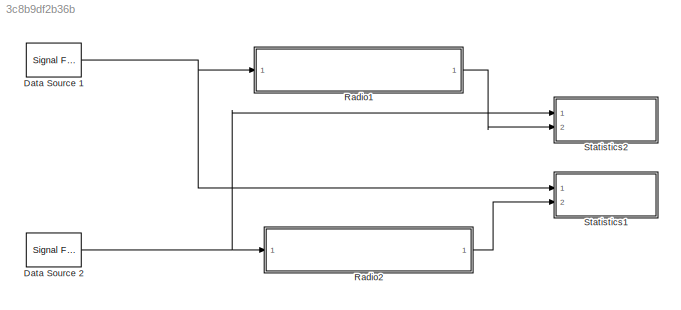
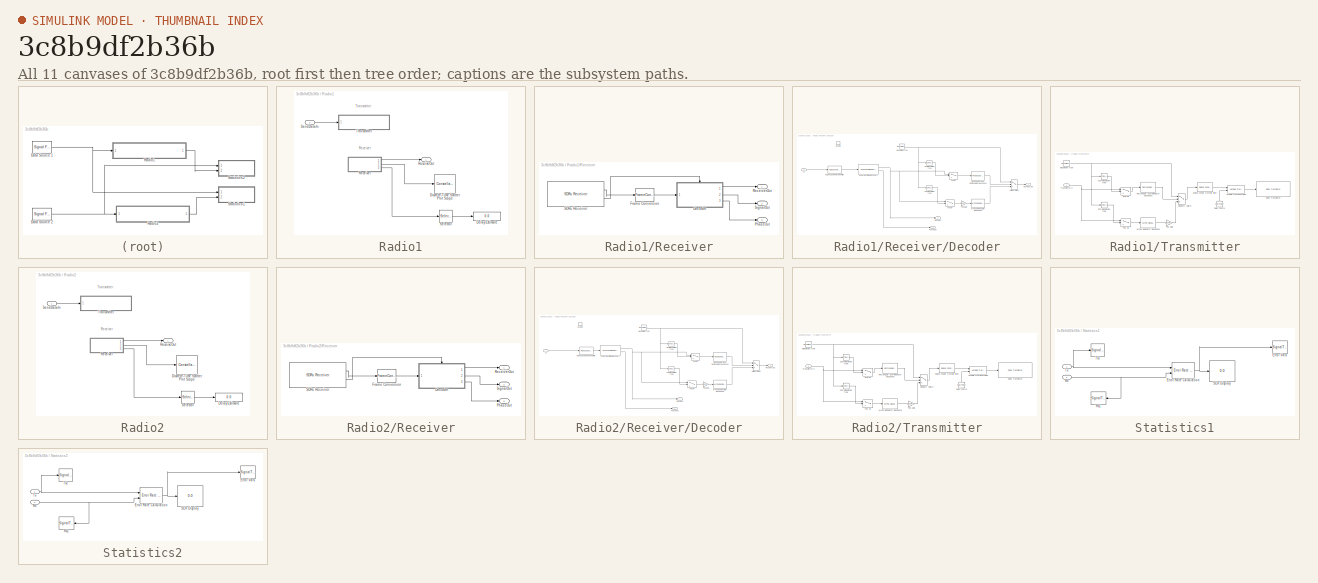
[diagram: thumbnail index - all 11 canvases of the model, root first then tree order]
MODEL slx_3c8b9df2b36b
KIND model
WORKSPACE source: MAT-file member
WORKSPACE MCOS: class17 (value not decoded)
WORKSPACE MCOS: class17 (value not decoded)
BLOCK [Reference] Data Source 1  REF=dspsrcs4/Signal From
Workspace
  OutputAfterFinalValue = Cyclic repetition
  Ports = [0, 1]
  SourceBlock = dspsrcs4/Signal From\nWorkspace
  SourceType = Signal From Workspace
  Ts = SampleTime
  X = data1
  ignoreOrWarnInputAndFrameLengths = on
  nsamps = SamplesPerFrame
BLOCK [Reference] Data Source 2  REF=dspsrcs4/Signal From
Workspace
  OutputAfterFinalValue = Cyclic repetition
  Ports = [0, 1]
  SourceBlock = dspsrcs4/Signal From\nWorkspace
  SourceType = Signal From Workspace
  Ts = SampleTime
  X = data2
  ignoreOrWarnInputAndFrameLengths = on
  nsamps = SamplesPerFrame
BLOCK [SubSystem] Radio1
  FunctionWithSeparateData = off
  MaskHideContents = off
  MinAlgLoopOccurrences = off
  Opaque = off
  Ports = [1, 1]
  PropExecContextOutsideSubsystem = off
  RTWSystemCode = Auto
  RequestExecContextInheritance = off
BLOCK [Display] Radio1/Delay Estimate
  Decimation = 1
  Ports = [1]
BLOCK [ConstellationDiagram] Radio1/Discrete-Time Scatter Plot Scope
  CloseFcn = scopeextensions.ScopeBlock.callback(gcbh, 'onBlockClose');
  CopyFcn = scopeextensions.ScopeBlock.onCoreBlockCopy(gcbh);
  DeleteFcn = scopeextensions.ScopeBlock.callback(gcbh, 'onBlockDelete');
  DestroyFcn = scopeextensions.ScopeBlock.onBlockDestroy(gcbh)
  Diagnostics = AllowInheritedTsInSrc
  NameChangeFcn = scopeextensions.ScopeBlock.callback(gcbh, 'onBlockRename');
  Ports = [1]
  PreDeleteFcn = scopeextensions.ScopeBlock.callback(gcbh, 'onBlockPreDelete');
  PreSaveFcn = scopeextensions.ScopeBlock.callback(gcbh, 'onModelSave');
  Tag = ScatterPlot
BLOCK [Outport] Radio1/ReceiveOut
  IconDisplay = Port number
BLOCK [SubSystem] Radio1/Receiver
  FunctionWithSeparateData = off
  MaskHideContents = off
  MinAlgLoopOccurrences = off
  Opaque = off
  Ports = [0, 3]
  PropExecContextOutsideSubsystem = off
  RTWFcnNameOpts = Use subsystem name
  RTWFileNameOpts = Use function name
  RTWSystemCode = Reusable function
  RequestExecContextInheritance = off
  TreatAsAtomicUnit = on
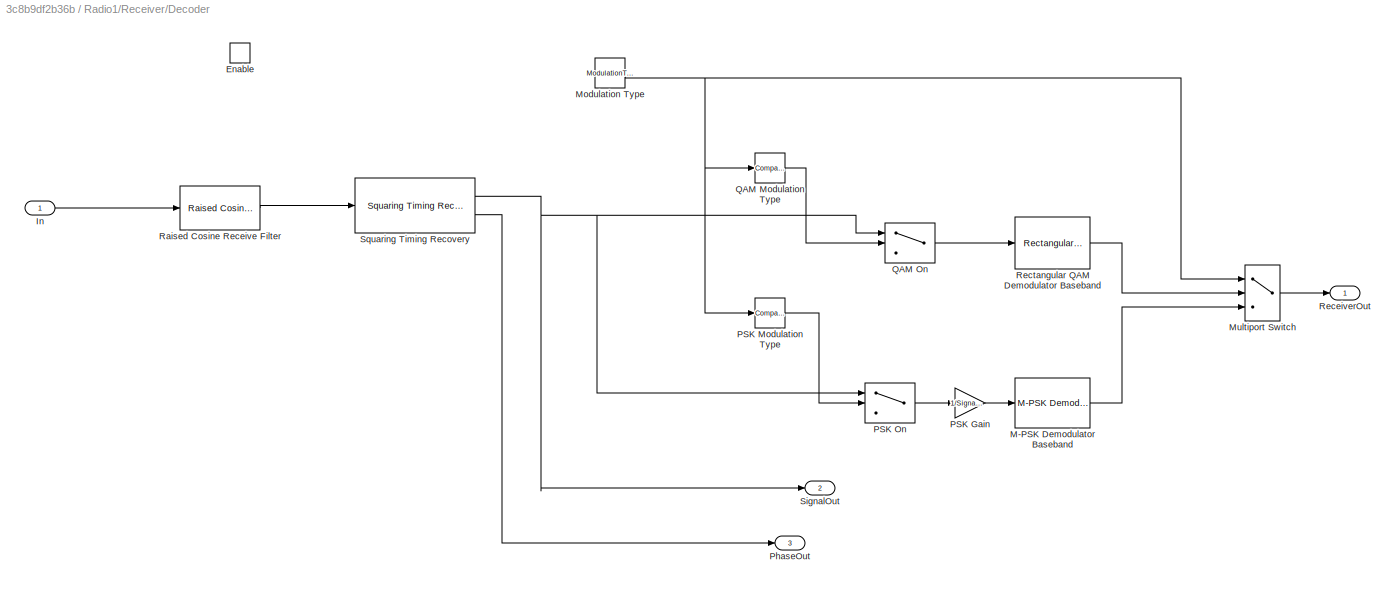
BLOCK [SubSystem] Radio1/Receiver/Decoder
  FunctionWithSeparateData = off
  MaskHideContents = off
  MinAlgLoopOccurrences = off
  Opaque = off
  Ports = [1, 3, 1]
  PropExecContextOutsideSubsystem = off
  RTWSystemCode = Auto
  RequestExecContextInheritance = off
  TreatAsAtomicUnit = on
BLOCK [EnablePort] Radio1/Receiver/Decoder/Enable
  Ports = []
BLOCK [Inport] Radio1/Receiver/Decoder/In
  IconDisplay = Port number
BLOCK [Reference] Radio1/Receiver/Decoder/M-PSK Demodulator Baseband  REF=commdigbbndpm3/M-PSK
Demodulator
Baseband
  Dec = Gray
  DecType = Hard decision
  M = M_ary
  Mapping = [0:7]
  OutType = Integer
  Ph = pi/M_ary
  Ports = [1, 1]
  SourceBlock = commdigbbndpm3/M-PSK\nDemodulator\nBaseband
  SourceType = M-PSK Demodulator Baseband
  VarSource = Dialog
  Variance = 1
  derotateFactorDTMode = Same word length as input
  derotateFactorWordLen = 16
  outDtype1 = Inherit via internal rule
  outDtype2 = uint8
BLOCK [Constant] Radio1/Receiver/Decoder/Modulation Type
  Value = ModulationType
BLOCK [MultiPortSwitch] Radio1/Receiver/Decoder/Multiport Switch
  DataPortOrder = Zero-based contiguous
  InputSameDT = off
  Inputs = 2
  Ports = [3, 1]
  SaturateOnIntegerOverflow = off
BLOCK [Gain] Radio1/Receiver/Decoder/PSK Gain
  Gain = 1/SignalPower
  OutDataTypeStr = Inherit: Inherit via internal rule
  ParamDataTypeStr = Inherit: Inherit via internal rule
  SaturateOnIntegerOverflow = off
BLOCK [Reference] Radio1/Receiver/Decoder/PSK Modulation Type  REF=simulink/Logic and Bit
Operations/Compare
To Constant
  OutDataTypeStr = uint8
  Ports = [1, 1]
  SourceBlock = simulink/Logic and Bit\nOperations/Compare\nTo Constant
  SourceType = Compare To Constant
  ZeroCross = on
  const = 1
  relop = ==
BLOCK [Switch] Radio1/Receiver/Decoder/PSK On
  Criteria = u2 > Threshold
  InputSameDT = off
  SaturateOnIntegerOverflow = off
BLOCK [Outport] Radio1/Receiver/Decoder/PhaseOut
  IconDisplay = Port number
  Port = 3
BLOCK [Reference] Radio1/Receiver/Decoder/QAM Modulation Type  REF=simulink/Logic and Bit
Operations/Compare
To Constant
  OutDataTypeStr = uint8
  Ports = [1, 1]
  SourceBlock = simulink/Logic and Bit\nOperations/Compare\nTo Constant
  SourceType = Compare To Constant
  ZeroCross = on
  const = 0
  relop = ==
BLOCK [Switch] Radio1/Receiver/Decoder/QAM On
  Criteria = u2 > Threshold
  InputSameDT = off
  SaturateOnIntegerOverflow = off
BLOCK [Reference] Radio1/Receiver/Decoder/Raised Cosine Receive Filter  REF=commfilt2/Raised Cosine
Receive Filter
  D = 4
  InputProcessing = Columns as channels (frame based)
  LockScale = off
  N = 8
  Ports = [1, 1]
  R = 0.2
  SourceBlock = commfilt2/Raised Cosine\nReceive Filter
  SourceType = Raised Cosine Receive Filter
  UserDataPersistent = on
  accumFracLength = 30
  accumMode = Same as product output
  accumWordLength = 32
  checkCoeff = off
  checkGain = Normalized
  coeffFracLength = 15
  coeffMode = Same word length as input
  coeffWordLength = 16
  currentFiltSpan = 2*(4)
  downFactor = 1
  downOffset = 0
  filtSpan = 2*(4)
  filtType = Square root
  filterGain = rcfiltgaincompat(gcbh)
  framing = Maintain input frame rate
  launchFVT = off
  outputFracLength = 15
  outputMode = Same as accumulator
  outputWordLength = 16
  overflowMode = off
  prodOutputFracLength = 30
  prodOutputMode = Same as input
  prodOutputWordLength = 32
  rateMode = Downsampling
  roundingMode = Floor
  sampMode = Mute
  saveAsFlag = 0
  variableName = rcRxFilt
BLOCK [Outport] Radio1/Receiver/Decoder/ReceiverOut
  IconDisplay = Port number
BLOCK [Reference] Radio1/Receiver/Decoder/Rectangular QAM Demodulator Baseband  REF=commdigbbndam3/Rectangular QAM
Demodulator
Baseband
  AvgPow = 1
  Dec = Binary
  DecType = Hard decision
  M = M_ary
  Mapping = [0:15]
  MinDist = SignalPower
  OutType = Integer
  PeakPow = 1
  Ph = SymbolPhaseOffset
  Ports = [1, 1]
  PowType = Min. distance between symbols
  SourceBlock = commdigbbndam3/Rectangular QAM\nDemodulator\nBaseband
  SourceType = Rectangular QAM Demodulator Baseband
  VarSource = Dialog
  Variance = 1
  denormFactorDTMode = Same word length as input
  denormFactorWordLen = 16
  derotateFactorDTMode = Same word length as input
  derotateFactorWordLen = 16
  outDtype1 = double
  outDtype2 = uint8
  prodOutDTMode = Inherit via internal rule
  prodOutOverflowMode = Wrap
  prodOutRoundingMode = Floor
  prodOutWordLen = 32
  sumDTMode = Inherit via internal rule
  sumWordLen = 32
BLOCK [Outport] Radio1/Receiver/Decoder/SignalOut
  IconDisplay = Port number
  Port = 2
BLOCK [Reference] Radio1/Receiver/Decoder/Squaring Timing Recovery  REF=commtimrec2/Squaring
Timing Recovery
  Ports = [1, 2]
  SourceBlock = commtimrec2/Squaring\nTiming Recovery
  SourceType = Squaring Timing Recovery
  numSymb = SamplesPerFrame
  sampPerSymb = 8
BLOCK [FrameConversion] Radio1/Receiver/Frame Conversion
  Ports = [1, 1]
BLOCK [Outport] Radio1/Receiver/PhaseOut
  IconDisplay = Port number
  Port = 3
BLOCK [Outport] Radio1/Receiver/ReceiverOut
  IconDisplay = Port number
BLOCK [Reference] Radio1/Receiver/SDRu Receiver  REF=commsdrhw_v2/SDRu Receiver
  EnableBurstMode = off
  HOST_CONTROL_PORT = 0
  HOST_DATA_PORT = 0
  NumFramesInBurst = 100
  Ports = [0, 2]
  SourceBlock = commsdrhw_v2/SDRu Receiver
  SourceType = SDRu Receiver
  USRP2_CONTROL_PORT = 0
  USRP2_DATA_PORT = 0
  USRP2_IP = '192.168.10.2'
  USRP2_IP_NUM = [49 57 50 46 49 54 56 46 49 48 46 50]
  bufferMode = Continuous streaming
  centerFrequency = CarrierFrequency
  centerFrequencySrc = Dialog
  decimInterp = 1
  decimInterpSrc = Dialog
  frameLength = SamplesPerFrame*8
  gain = SignalPower
  gainSrc = Dialog
  loOffset = 0
  loOffsetSrc = Dialog
  outputDatatype = double
  overrunUnderrunPort = off
  rxtx = rx
  sampleTime = SampleTime/8
BLOCK [Outport] Radio1/Receiver/SignalOut
  IconDisplay = Port number
  Port = 2
BLOCK [Selector] Radio1/Selector
  IndexOptions = Index vector (dialog)
  Indices = 1
  InputPortWidth = SamplesPerFrame
  OutputSizes = 1
  Ports = [1, 1]
BLOCK [Inport] Radio1/SendDataIn
  IconDisplay = Port number
BLOCK [SubSystem] Radio1/Transmitter
  FunctionWithSeparateData = off
  MaskHideContents = off
  MinAlgLoopOccurrences = off
  Opaque = off
  Ports = [1]
  PropExecContextOutsideSubsystem = off
  RTWFcnNameOpts = Use subsystem name
  RTWFileNameOpts = Use function name
  RTWSystemCode = Reusable function
  RequestExecContextInheritance = off
  TreatAsAtomicUnit = on
BLOCK [Constant] Radio1/Transmitter/Delay Factor
  Value = DelayParam
BLOCK [Reference] Radio1/Transmitter/M-PSK Modulator Baseband  REF=commdigbbndpm3/M-PSK
Modulator
Baseband
  Enc = Gray
  InType = Integer
  M = M_ary
  Mapping = [0:7]
  Ph = pi/M_ary
  Ports = [1, 1]
  SourceBlock = commdigbbndpm3/M-PSK\nModulator\nBaseband
  SourceType = M-PSK Modulator Baseband
  outDtype = double
  outFracLen = 15
  outFracLenMode = Best precision
  outUDDataType = sfix(16)
  outWordLen = 16
BLOCK [Constant] Radio1/Transmitter/Modulation Type
  Value = ModulationType
BLOCK [MultiPortSwitch] Radio1/Transmitter/Multiport Switch
  DataPortOrder = Zero-based contiguous
  InputSameDT = off
  Inputs = 2
  Ports = [3, 1]
  SaturateOnIntegerOverflow = off
BLOCK [Gain] Radio1/Transmitter/PSK Gain
  Gain = SignalPower
  OutDataTypeStr = Inherit: Inherit via internal rule
  ParamDataTypeStr = Inherit: Inherit via internal rule
  SaturateOnIntegerOverflow = off
BLOCK [Reference] Radio1/Transmitter/PSK Modulation Type  REF=simulink/Logic and Bit
Operations/Compare
To Constant
  OutDataTypeStr = uint8
  Ports = [1, 1]
  SourceBlock = simulink/Logic and Bit\nOperations/Compare\nTo Constant
  SourceType = Compare To Constant
  ZeroCross = on
  const = 1
  relop = ==
BLOCK [Switch] Radio1/Transmitter/PSK On
  Criteria = u2 > Threshold
  InputSameDT = off
  SaturateOnIntegerOverflow = off
BLOCK [Reference] Radio1/Transmitter/QAM Modulation Type  REF=simulink/Logic and Bit
Operations/Compare
To Constant
  OutDataTypeStr = uint8
  Ports = [1, 1]
  SourceBlock = simulink/Logic and Bit\nOperations/Compare\nTo Constant
  SourceType = Compare To Constant
  ZeroCross = on
  const = 0
  relop = ==
BLOCK [Switch] Radio1/Transmitter/QAM On
  Criteria = u2 > Threshold
  InputSameDT = off
  SaturateOnIntegerOverflow = off
BLOCK [Reference] Radio1/Transmitter/Raised Cosine Transmit Filter  REF=commfilt2/Raised Cosine
Transmit Filter
  D = (2*(4))/2
  InputProcessing = Columns as channels (frame based)
  LockScale = off
  N = 8
  Ports = [1, 1]
  R = 0.2
  SourceBlock = commfilt2/Raised Cosine\nTransmit Filter
  SourceType = Raised Cosine Transmit Filter
  UserDataPersistent = on
  accumFracLength = 30
  accumMode = Inherit via internal rule
  accumWordLength = 32
  checkCoeff = off
  checkGain = Normalized
  coeffFracLength = 15
  coeffMode = Same word length as input
  coeffWordLength = 16
  currentFiltSpan = 2*(4)
  filtSpan = 2*(4)
  filtType = Square root
  filterGain = rcfiltgaincompat(gcbh)
  framing = Enforce single-rate processing
  launchFVT = off
  outputFracLength = 15
  outputMode = Same as accumulator
  outputWordLength = 16
  overflowMode = off
  prodOutputFracLength = 30
  prodOutputMode = Inherit via internal rule
  prodOutputWordLength = 32
  roundingMode = Floor
  sampMode = Mute
  saveAsFlag = 0
  variableName = rcTxFilt
BLOCK [Reference] Radio1/Transmitter/Rectangular QAM Modulator Baseband  REF=commdigbbndam3/Rectangular QAM
Modulator
Baseband
  AvgPow = 1
  Enc = Binary
  InType = Integer
  M = M_ary
  Mapping = [0:15]
  MinDist = SignalPower
  PeakPow = 1
  Ph = SymbolPhaseOffset
  Ports = [1, 1]
  PowType = Min. distance between symbols
  SourceBlock = commdigbbndam3/Rectangular QAM\nModulator\nBaseband
  SourceType = Rectangular QAM Modulator Baseband
  outDtype = double
  outFracLen = 15
  outFracLenMode = Best precision
  outUDDataType = sfix(16)
  outWordLen = 16
BLOCK [Reference] Radio1/Transmitter/SDRu Transmitter  REF=commsdrhw_v2/SDRu Transmitter
  EnableBurstMode = off
  HOST_CONTROL_PORT = 30001
  HOST_DATA_PORT = 30000
  NumFramesInBurst = 100
  Ports = [1]
  SourceBlock = commsdrhw_v2/SDRu Transmitter
  SourceType = SDRu Transmitter
  USRP2_CONTROL_PORT = 32768
  USRP2_DATA_PORT = 32769
  USRP2_IP = '192.168.10.2'
  USRP2_IP_NUM = [49 57 50 46 49 54 56 46 49 48 46 50]
  bufferMode = Continuous streaming
  centerFrequency = CarrierFrequency
  centerFrequencySrc = Dialog
  dboardInfo = dbid: 0\n          dbName: 'no db found'\n         freqMin: 0\n         freqMax: 0\n         gainMin: 0\n         gainMax: 0\n    gainStepSize: 0
  decimInterp = 1e8*SampleTime
  decimInterpSrc = Dialog
  frameLength = 362
  gain = SignalPower
  gainSrc = Dialog
  loOffset = 0
  loOffsetSrc = Dialog
  outputDatatype = int16
  overrunUnderrunPort = off
  rxtx = tx
  sampleTime = 1
BLOCK [Inport] Radio1/Transmitter/TransmitterIn
  IconDisplay = Port number
BLOCK [Reference] Radio1/Transmitter/Variable Fractional Delay  REF=dspsigops/Variable
Fractional Delay
  FarrowL = 4
  InputProcessing = Columns as channels (frame based)
  L = 4
  LockScale = off
  Ports = [2, 1]
  R = 10
  SourceBlock = dspsigops/Variable\nFractional Delay
  SourceType = Variable Fractional Delay
  UserDataPersistent = on
  accumFracLength = 10
  accumMode = Same as product output
  accumWordLength = 32
  alpha = 1
  dmax = 4
  fallbackFIR = Clip to the minimum value necessary for centered kernel
  fallbackFarrow = Clip to the minimum value necessary for centered kernel
  firstCoeffFracLength = 0
  firstCoeffMode = Same word length as input
  firstCoeffWordLength = 32
  ic = 0
  interProdFracLength = 10
  interProdMode = Same as first input
  interProdWordLength = 32
  memoryFracLength = 10
  memoryMode = Same as first input
  memoryWordLength = 32
  mode = OBSOLETE
  modeActive = Linear
  noDFT = off
  outputFracLength = 10
  outputMode = Same as accumulator
  outputWordLength = 32
  overflowMode = off
  prodOutputFracLength = 10
  prodOutputMode = Same as first input
  prodOutputWordLength = 32
  roundingMode = Zero
  secondCoeffFracLength = 10
  secondCoeffMode = Same as first input
  secondCoeffWordLength = 32
BLOCK [SubSystem] Radio2
  FunctionWithSeparateData = off
  MaskHideContents = off
  MinAlgLoopOccurrences = off
  Opaque = off
  Ports = [1, 1]
  PropExecContextOutsideSubsystem = off
  RTWSystemCode = Auto
  RequestExecContextInheritance = off
BLOCK [Display] Radio2/Delay Estimate
  Decimation = 1
  Ports = [1]
BLOCK [ConstellationDiagram] Radio2/Discrete-Time Scatter Plot Scope
  CloseFcn = scopeextensions.ScopeBlock.callback(gcbh, 'onBlockClose');
  CopyFcn = scopeextensions.ScopeBlock.onCoreBlockCopy(gcbh);
  DeleteFcn = scopeextensions.ScopeBlock.callback(gcbh, 'onBlockDelete');
  DestroyFcn = scopeextensions.ScopeBlock.onBlockDestroy(gcbh)
  Diagnostics = AllowInheritedTsInSrc
  NameChangeFcn = scopeextensions.ScopeBlock.callback(gcbh, 'onBlockRename');
  Ports = [1]
  PreDeleteFcn = scopeextensions.ScopeBlock.callback(gcbh, 'onBlockPreDelete');
  PreSaveFcn = scopeextensions.ScopeBlock.callback(gcbh, 'onModelSave');
  Tag = ScatterPlot
BLOCK [Outport] Radio2/ReceiveOut
  IconDisplay = Port number
BLOCK [SubSystem] Radio2/Receiver
  FunctionWithSeparateData = off
  MaskHideContents = off
  MinAlgLoopOccurrences = off
  Opaque = off
  Ports = [0, 3]
  PropExecContextOutsideSubsystem = off
  RTWFcnNameOpts = Use subsystem name
  RTWFileNameOpts = Use function name
  RTWSystemCode = Reusable function
  RequestExecContextInheritance = off
  TreatAsAtomicUnit = on
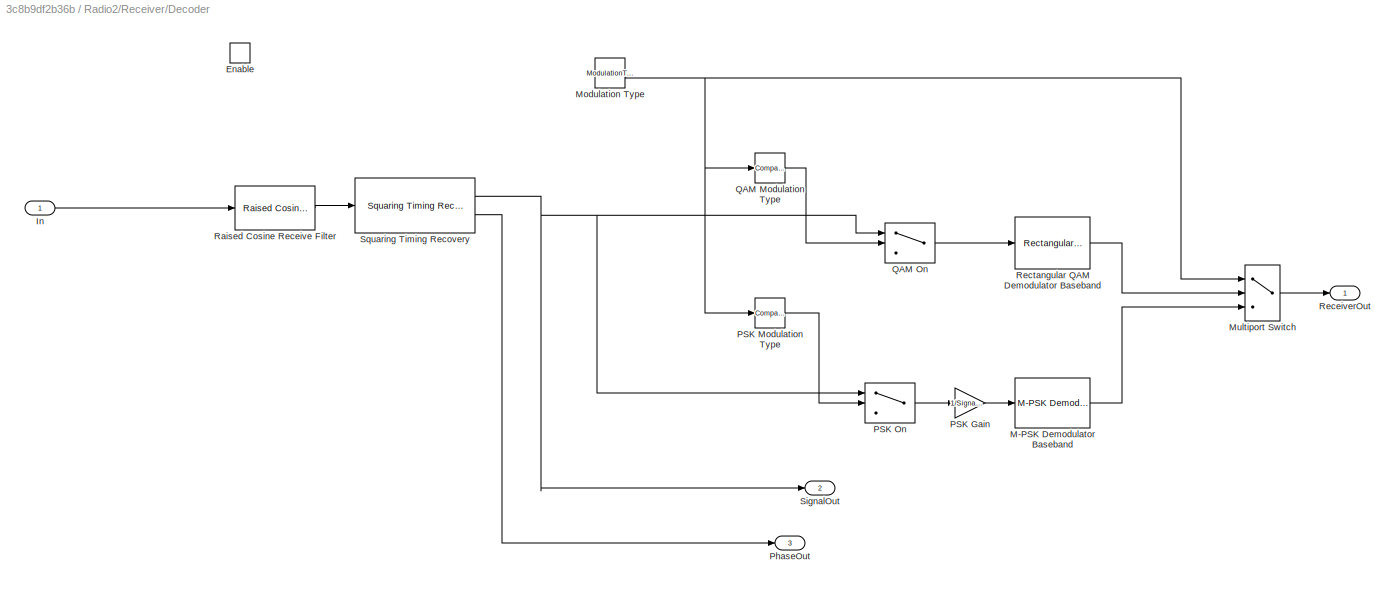
BLOCK [SubSystem] Radio2/Receiver/Decoder
  FunctionWithSeparateData = off
  MaskHideContents = off
  MinAlgLoopOccurrences = off
  Opaque = off
  Ports = [1, 3, 1]
  PropExecContextOutsideSubsystem = off
  RTWSystemCode = Auto
  RequestExecContextInheritance = off
  TreatAsAtomicUnit = on
BLOCK [EnablePort] Radio2/Receiver/Decoder/Enable
  Ports = []
BLOCK [Inport] Radio2/Receiver/Decoder/In
  IconDisplay = Port number
BLOCK [Reference] Radio2/Receiver/Decoder/M-PSK Demodulator Baseband  REF=commdigbbndpm3/M-PSK
Demodulator
Baseband
  Dec = Gray
  DecType = Hard decision
  M = M_ary
  Mapping = [0:7]
  OutType = Integer
  Ph = pi/M_ary
  Ports = [1, 1]
  SourceBlock = commdigbbndpm3/M-PSK\nDemodulator\nBaseband
  SourceType = M-PSK Demodulator Baseband
  VarSource = Dialog
  Variance = 1
  derotateFactorDTMode = Same word length as input
  derotateFactorWordLen = 16
  outDtype1 = Inherit via internal rule
  outDtype2 = uint8
BLOCK [Constant] Radio2/Receiver/Decoder/Modulation Type
  Value = ModulationType
BLOCK [MultiPortSwitch] Radio2/Receiver/Decoder/Multiport Switch
  DataPortOrder = Zero-based contiguous
  InputSameDT = off
  Inputs = 2
  Ports = [3, 1]
  SaturateOnIntegerOverflow = off
BLOCK [Gain] Radio2/Receiver/Decoder/PSK Gain
  Gain = 1/SignalPower
  OutDataTypeStr = Inherit: Inherit via internal rule
  ParamDataTypeStr = Inherit: Inherit via internal rule
  SaturateOnIntegerOverflow = off
BLOCK [Reference] Radio2/Receiver/Decoder/PSK Modulation Type  REF=simulink/Logic and Bit
Operations/Compare
To Constant
  OutDataTypeStr = uint8
  Ports = [1, 1]
  SourceBlock = simulink/Logic and Bit\nOperations/Compare\nTo Constant
  SourceType = Compare To Constant
  ZeroCross = on
  const = 1
  relop = ==
BLOCK [Switch] Radio2/Receiver/Decoder/PSK On
  Criteria = u2 > Threshold
  InputSameDT = off
  SaturateOnIntegerOverflow = off
BLOCK [Outport] Radio2/Receiver/Decoder/PhaseOut
  IconDisplay = Port number
  Port = 3
BLOCK [Reference] Radio2/Receiver/Decoder/QAM Modulation Type  REF=simulink/Logic and Bit
Operations/Compare
To Constant
  OutDataTypeStr = uint8
  Ports = [1, 1]
  SourceBlock = simulink/Logic and Bit\nOperations/Compare\nTo Constant
  SourceType = Compare To Constant
  ZeroCross = on
  const = 0
  relop = ==
BLOCK [Switch] Radio2/Receiver/Decoder/QAM On
  Criteria = u2 > Threshold
  InputSameDT = off
  SaturateOnIntegerOverflow = off
BLOCK [Reference] Radio2/Receiver/Decoder/Raised Cosine Receive Filter  REF=commfilt2/Raised Cosine
Receive Filter
  D = 4
  InputProcessing = Columns as channels (frame based)
  LockScale = off
  N = 8
  Ports = [1, 1]
  R = 0.2
  SourceBlock = commfilt2/Raised Cosine\nReceive Filter
  SourceType = Raised Cosine Receive Filter
  UserDataPersistent = on
  accumFracLength = 30
  accumMode = Same as product output
  accumWordLength = 32
  checkCoeff = off
  checkGain = Normalized
  coeffFracLength = 15
  coeffMode = Same word length as input
  coeffWordLength = 16
  currentFiltSpan = 2*(4)
  downFactor = 1
  downOffset = 0
  filtSpan = 2*(4)
  filtType = Square root
  filterGain = rcfiltgaincompat(gcbh)
  framing = Maintain input frame rate
  launchFVT = off
  outputFracLength = 15
  outputMode = Same as accumulator
  outputWordLength = 16
  overflowMode = off
  prodOutputFracLength = 30
  prodOutputMode = Same as input
  prodOutputWordLength = 32
  rateMode = Downsampling
  roundingMode = Floor
  sampMode = Mute
  saveAsFlag = 0
  variableName = rcRxFilt
BLOCK [Outport] Radio2/Receiver/Decoder/ReceiverOut
  IconDisplay = Port number
BLOCK [Reference] Radio2/Receiver/Decoder/Rectangular QAM Demodulator Baseband  REF=commdigbbndam3/Rectangular QAM
Demodulator
Baseband
  AvgPow = 1
  Dec = Binary
  DecType = Hard decision
  M = M_ary
  Mapping = [0:15]
  MinDist = SignalPower
  OutType = Integer
  PeakPow = 1
  Ph = SymbolPhaseOffset
  Ports = [1, 1]
  PowType = Min. distance between symbols
  SourceBlock = commdigbbndam3/Rectangular QAM\nDemodulator\nBaseband
  SourceType = Rectangular QAM Demodulator Baseband
  VarSource = Dialog
  Variance = 1
  denormFactorDTMode = Same word length as input
  denormFactorWordLen = 16
  derotateFactorDTMode = Same word length as input
  derotateFactorWordLen = 16
  outDtype1 = double
  outDtype2 = uint8
  prodOutDTMode = Inherit via internal rule
  prodOutOverflowMode = Wrap
  prodOutRoundingMode = Floor
  prodOutWordLen = 32
  sumDTMode = Inherit via internal rule
  sumWordLen = 32
BLOCK [Outport] Radio2/Receiver/Decoder/SignalOut
  IconDisplay = Port number
  Port = 2
BLOCK [Reference] Radio2/Receiver/Decoder/Squaring Timing Recovery  REF=commtimrec2/Squaring
Timing Recovery
  Ports = [1, 2]
  SourceBlock = commtimrec2/Squaring\nTiming Recovery
  SourceType = Squaring Timing Recovery
  numSymb = SamplesPerFrame
  sampPerSymb = 8
BLOCK [FrameConversion] Radio2/Receiver/Frame Conversion
  Ports = [1, 1]
BLOCK [Outport] Radio2/Receiver/PhaseOut
  IconDisplay = Port number
  Port = 3
BLOCK [Outport] Radio2/Receiver/ReceiverOut
  IconDisplay = Port number
BLOCK [Reference] Radio2/Receiver/SDRu Receiver  REF=commsdrhw_v2/SDRu Receiver
  EnableBurstMode = off
  HOST_CONTROL_PORT = 0
  HOST_DATA_PORT = 0
  NumFramesInBurst = 100
  Ports = [0, 2]
  SourceBlock = commsdrhw_v2/SDRu Receiver
  SourceType = SDRu Receiver
  USRP2_CONTROL_PORT = 0
  USRP2_DATA_PORT = 0
  USRP2_IP = '192.168.10.2'
  USRP2_IP_NUM = [49 57 50 46 49 54 56 46 49 48 46 50]
  bufferMode = Continuous streaming
  centerFrequency = CarrierFrequency
  centerFrequencySrc = Dialog
  decimInterp = 1
  decimInterpSrc = Dialog
  frameLength = SamplesPerFrame*8
  gain = SignalPower
  gainSrc = Dialog
  loOffset = 0
  loOffsetSrc = Dialog
  outputDatatype = double
  overrunUnderrunPort = off
  rxtx = rx
  sampleTime = SampleTime/8
BLOCK [Outport] Radio2/Receiver/SignalOut
  IconDisplay = Port number
  Port = 2
BLOCK [Selector] Radio2/Selector
  IndexOptions = Index vector (dialog)
  Indices = 1
  InputPortWidth = SamplesPerFrame
  OutputSizes = 1
  Ports = [1, 1]
BLOCK [Inport] Radio2/SendDataIn
  IconDisplay = Port number
BLOCK [SubSystem] Radio2/Transmitter
  FunctionWithSeparateData = off
  MaskHideContents = off
  MinAlgLoopOccurrences = off
  Opaque = off
  Ports = [1]
  PropExecContextOutsideSubsystem = off
  RTWFcnNameOpts = Use subsystem name
  RTWFileNameOpts = Use function name
  RTWSystemCode = Reusable function
  RequestExecContextInheritance = off
  TreatAsAtomicUnit = on
BLOCK [Constant] Radio2/Transmitter/Delay Factor
  Value = DelayParam
BLOCK [Reference] Radio2/Transmitter/M-PSK Modulator Baseband  REF=commdigbbndpm3/M-PSK
Modulator
Baseband
  Enc = Gray
  InType = Integer
  M = M_ary
  Mapping = [0:7]
  Ph = pi/M_ary
  Ports = [1, 1]
  SourceBlock = commdigbbndpm3/M-PSK\nModulator\nBaseband
  SourceType = M-PSK Modulator Baseband
  outDtype = double
  outFracLen = 15
  outFracLenMode = Best precision
  outUDDataType = sfix(16)
  outWordLen = 16
BLOCK [Constant] Radio2/Transmitter/Modulation Type
  Value = ModulationType
BLOCK [MultiPortSwitch] Radio2/Transmitter/Multiport Switch
  DataPortOrder = Zero-based contiguous
  InputSameDT = off
  Inputs = 2
  Ports = [3, 1]
  SaturateOnIntegerOverflow = off
BLOCK [Gain] Radio2/Transmitter/PSK Gain
  Gain = SignalPower
  OutDataTypeStr = Inherit: Inherit via internal rule
  ParamDataTypeStr = Inherit: Inherit via internal rule
  SaturateOnIntegerOverflow = off
BLOCK [Reference] Radio2/Transmitter/PSK Modulation Type  REF=simulink/Logic and Bit
Operations/Compare
To Constant
  OutDataTypeStr = uint8
  Ports = [1, 1]
  SourceBlock = simulink/Logic and Bit\nOperations/Compare\nTo Constant
  SourceType = Compare To Constant
  ZeroCross = on
  const = 1
  relop = ==
BLOCK [Switch] Radio2/Transmitter/PSK On
  Criteria = u2 > Threshold
  InputSameDT = off
  SaturateOnIntegerOverflow = off
BLOCK [Reference] Radio2/Transmitter/QAM Modulation Type  REF=simulink/Logic and Bit
Operations/Compare
To Constant
  OutDataTypeStr = uint8
  Ports = [1, 1]
  SourceBlock = simulink/Logic and Bit\nOperations/Compare\nTo Constant
  SourceType = Compare To Constant
  ZeroCross = on
  const = 0
  relop = ==
BLOCK [Switch] Radio2/Transmitter/QAM On
  Criteria = u2 > Threshold
  InputSameDT = off
  SaturateOnIntegerOverflow = off
BLOCK [Reference] Radio2/Transmitter/Raised Cosine Transmit Filter  REF=commfilt2/Raised Cosine
Transmit Filter
  D = (2*(4))/2
  InputProcessing = Columns as channels (frame based)
  LockScale = off
  N = 8
  Ports = [1, 1]
  R = 0.2
  SourceBlock = commfilt2/Raised Cosine\nTransmit Filter
  SourceType = Raised Cosine Transmit Filter
  UserDataPersistent = on
  accumFracLength = 30
  accumMode = Inherit via internal rule
  accumWordLength = 32
  checkCoeff = off
  checkGain = Normalized
  coeffFracLength = 15
  coeffMode = Same word length as input
  coeffWordLength = 16
  currentFiltSpan = 2*(4)
  filtSpan = 2*(4)
  filtType = Square root
  filterGain = rcfiltgaincompat(gcbh)
  framing = Enforce single-rate processing
  launchFVT = off
  outputFracLength = 15
  outputMode = Same as accumulator
  outputWordLength = 16
  overflowMode = off
  prodOutputFracLength = 30
  prodOutputMode = Inherit via internal rule
  prodOutputWordLength = 32
  roundingMode = Floor
  sampMode = Mute
  saveAsFlag = 0
  variableName = rcTxFilt
BLOCK [Reference] Radio2/Transmitter/Rectangular QAM Modulator Baseband  REF=commdigbbndam3/Rectangular QAM
Modulator
Baseband
  AvgPow = 1
  Enc = Binary
  InType = Integer
  M = M_ary
  Mapping = [0:15]
  MinDist = SignalPower
  PeakPow = 1
  Ph = SymbolPhaseOffset
  Ports = [1, 1]
  PowType = Min. distance between symbols
  SourceBlock = commdigbbndam3/Rectangular QAM\nModulator\nBaseband
  SourceType = Rectangular QAM Modulator Baseband
  outDtype = double
  outFracLen = 15
  outFracLenMode = Best precision
  outUDDataType = sfix(16)
  outWordLen = 16
BLOCK [Reference] Radio2/Transmitter/SDRu Transmitter  REF=commsdrhw_v2/SDRu Transmitter
  EnableBurstMode = off
  HOST_CONTROL_PORT = 30001
  HOST_DATA_PORT = 30000
  NumFramesInBurst = 100
  Ports = [1]
  SourceBlock = commsdrhw_v2/SDRu Transmitter
  SourceType = SDRu Transmitter
  USRP2_CONTROL_PORT = 32768
  USRP2_DATA_PORT = 32769
  USRP2_IP = '192.168.10.2'
  USRP2_IP_NUM = [49 57 50 46 49 54 56 46 49 48 46 50]
  bufferMode = Continuous streaming
  centerFrequency = CarrierFrequency
  centerFrequencySrc = Dialog
  dboardInfo = dbid: 0\n          dbName: 'no db found'\n         freqMin: 0\n         freqMax: 0\n         gainMin: 0\n         gainMax: 0\n    gainStepSize: 0
  decimInterp = 1e8*SampleTime
  decimInterpSrc = Dialog
  frameLength = 362
  gain = SignalPower
  gainSrc = Dialog
  loOffset = 0
  loOffsetSrc = Dialog
  outputDatatype = int16
  overrunUnderrunPort = off
  rxtx = tx
  sampleTime = 1
BLOCK [Inport] Radio2/Transmitter/TransmitterIn
  IconDisplay = Port number
BLOCK [Reference] Radio2/Transmitter/Variable Fractional Delay  REF=dspsigops/Variable
Fractional Delay
  FarrowL = 4
  InputProcessing = Columns as channels (frame based)
  L = 4
  LockScale = off
  Ports = [2, 1]
  R = 10
  SourceBlock = dspsigops/Variable\nFractional Delay
  SourceType = Variable Fractional Delay
  UserDataPersistent = on
  accumFracLength = 10
  accumMode = Same as product output
  accumWordLength = 32
  alpha = 1
  dmax = 4
  fallbackFIR = Clip to the minimum value necessary for centered kernel
  fallbackFarrow = Clip to the minimum value necessary for centered kernel
  firstCoeffFracLength = 0
  firstCoeffMode = Same word length as input
  firstCoeffWordLength = 32
  ic = 0
  interProdFracLength = 10
  interProdMode = Same as first input
  interProdWordLength = 32
  memoryFracLength = 10
  memoryMode = Same as first input
  memoryWordLength = 32
  mode = OBSOLETE
  modeActive = Linear
  noDFT = off
  outputFracLength = 10
  outputMode = Same as accumulator
  outputWordLength = 32
  overflowMode = off
  prodOutputFracLength = 10
  prodOutputMode = Same as first input
  prodOutputWordLength = 32
  roundingMode = Zero
  secondCoeffFracLength = 10
  secondCoeffMode = Same as first input
  secondCoeffWordLength = 32
BLOCK [SubSystem] Statistics1
  FunctionWithSeparateData = off
  MaskHideContents = off
  MinAlgLoopOccurrences = off
  Opaque = off
  Ports = [2]
  PropExecContextOutsideSubsystem = off
  RTWFcnNameOpts = Use subsystem name
  RTWFileNameOpts = Use function name
  RTWSystemCode = Reusable function
  RequestExecContextInheritance = off
  TreatAsAtomicUnit = on
BLOCK [Reference] Statistics1/Error Rate Calculation  REF=commsink2/Error Rate
Calculation
  N = 8
  PMode = Port
  Ports = [2, 1]
  RsMode2 = off
  SourceBlock = commsink2/Error Rate\nCalculation
  SourceType = Error Rate Calculation
  WsName = ErrorVec
  cp_mode = Entire frame
  maxBits = 1e6
  numErr = 100
  st_delay = 0
  stop = off
  subframe = []
BLOCK [SignalToWorkspace] Statistics1/Error Vars
  CopyFcn = dspblkcopystw(gcbh);
  MaxDataPoints = inf
  Ports = [1]
  VariableName = ErrorVars1
BLOCK [Inport] Statistics1/Rx
  IconDisplay = Port number
  Port = 2
BLOCK [SignalToWorkspace] Statistics1/Rx1
  CopyFcn = dspblkcopystw(gcbh);
  MaxDataPoints = inf
  Ports = [1]
  VariableName = Rx1
BLOCK [Display] Statistics1/SER Display
  Decimation = 1
  Ports = [1]
BLOCK [Inport] Statistics1/Tx
  IconDisplay = Port number
BLOCK [SignalToWorkspace] Statistics1/Tx1
  CopyFcn = dspblkcopystw(gcbh);
  MaxDataPoints = inf
  Ports = [1]
  VariableName = Tx1
BLOCK [SubSystem] Statistics2
  FunctionWithSeparateData = off
  MaskHideContents = off
  MinAlgLoopOccurrences = off
  Opaque = off
  Ports = [2]
  PropExecContextOutsideSubsystem = off
  RTWFcnNameOpts = Use subsystem name
  RTWFileNameOpts = Use function name
  RTWSystemCode = Reusable function
  RequestExecContextInheritance = off
  TreatAsAtomicUnit = on
BLOCK [Reference] Statistics2/Error Rate Calculation  REF=commsink2/Error Rate
Calculation
  N = 8
  PMode = Port
  Ports = [2, 1]
  RsMode2 = off
  SourceBlock = commsink2/Error Rate\nCalculation
  SourceType = Error Rate Calculation
  WsName = ErrorVec
  cp_mode = Entire frame
  maxBits = 1e6
  numErr = 100
  st_delay = 0
  stop = off
  subframe = []
BLOCK [SignalToWorkspace] Statistics2/Error Vars
  CopyFcn = dspblkcopystw(gcbh);
  MaxDataPoints = inf
  Ports = [1]
  VariableName = ErrorVars2
BLOCK [Inport] Statistics2/Rx
  IconDisplay = Port number
  Port = 2
BLOCK [SignalToWorkspace] Statistics2/Rx2
  CopyFcn = dspblkcopystw(gcbh);
  MaxDataPoints = inf
  Ports = [1]
  VariableName = Rx2
BLOCK [Display] Statistics2/SER Display
  Decimation = 1
  Ports = [1]
BLOCK [Inport] Statistics2/Tx
  IconDisplay = Port number
BLOCK [SignalToWorkspace] Statistics2/Tx2
  CopyFcn = dspblkcopystw(gcbh);
  MaxDataPoints = inf
  Ports = [1]
  VariableName = Tx2
ANNOTATION Radio1: Receiver
ANNOTATION Radio1: Transmitter
ANNOTATION Radio2: Receiver
ANNOTATION Radio2: Transmitter
NET Data Source 1:1 -> Radio1:1, Statistics1:1
NET Data Source 2:1 -> Radio2:1, Statistics2:1
LINE Radio1/Receiver/Decoder/In:1 -> Radio1/Receiver/Decoder/Raised Cosine Receive Filter:1
LINE Radio1/Receiver/Decoder/M-PSK Demodulator Baseband:1 -> Radio1/Receiver/Decoder/Multiport Switch:3
NET Radio1/Receiver/Decoder/Modulation Type:1 -> Radio1/Receiver/Decoder/Multiport Switch:1, Radio1/Receiver/Decoder/PSK Modulation Type:1, Radio1/Receiver/Decoder/QAM Modulation Type:1
LINE Radio1/Receiver/Decoder/Multiport Switch:1 -> Radio1/Receiver/Decoder/ReceiverOut:1
LINE Radio1/Receiver/Decoder/PSK Gain:1 -> Radio1/Receiver/Decoder/M-PSK Demodulator Baseband:1
LINE Radio1/Receiver/Decoder/PSK Modulation Type:1 -> Radio1/Receiver/Decoder/PSK On:2
LINE Radio1/Receiver/Decoder/PSK On:1 -> Radio1/Receiver/Decoder/PSK Gain:1
LINE Radio1/Receiver/Decoder/QAM Modulation Type:1 -> Radio1/Receiver/Decoder/QAM On:2
LINE Radio1/Receiver/Decoder/QAM On:1 -> Radio1/Receiver/Decoder/Rectangular QAM Demodulator Baseband:1
LINE Radio1/Receiver/Decoder/Raised Cosine Receive Filter:1 -> Radio1/Receiver/Decoder/Squaring Timing Recovery:1
LINE Radio1/Receiver/Decoder/Rectangular QAM Demodulator Baseband:1 -> Radio1/Receiver/Decoder/Multiport Switch:2
NET Radio1/Receiver/Decoder/Squaring Timing Recovery:1 -> Radio1/Receiver/Decoder/PSK On:1, Radio1/Receiver/Decoder/QAM On:1, Radio1/Receiver/Decoder/SignalOut:1
LINE Radio1/Receiver/Decoder/Squaring Timing Recovery:2 -> Radio1/Receiver/Decoder/PhaseOut:1
LINE Radio1/Receiver/Decoder:1 -> Radio1/Receiver/ReceiverOut:1
LINE Radio1/Receiver/Decoder:2 -> Radio1/Receiver/SignalOut:1
LINE Radio1/Receiver/Decoder:3 -> Radio1/Receiver/PhaseOut:1
LINE Radio1/Receiver/Frame Conversion:1 -> Radio1/Receiver/Decoder:1
LINE Radio1/Receiver/SDRu Receiver:1 -> Radio1/Receiver/Frame Conversion:1
LINE Radio1/Receiver/SDRu Receiver:2 -> Radio1/Receiver/Decoder:enable
LINE Radio1/Receiver:1 -> Radio1/ReceiveOut:1
LINE Radio1/Receiver:2 -> Radio1/Discrete-Time Scatter Plot Scope:1
LINE Radio1/Receiver:3 -> Radio1/Selector:1
LINE Radio1/Selector:1 -> Radio1/Delay Estimate:1
LINE Radio1/SendDataIn:1 -> Radio1/Transmitter:1
LINE Radio1/Transmitter/Delay Factor:1 -> Radio1/Transmitter/Variable Fractional Delay:2
LINE Radio1/Transmitter/M-PSK Modulator Baseband:1 -> Radio1/Transmitter/PSK Gain:1
NET Radio1/Transmitter/Modulation Type:1 -> Radio1/Transmitter/Multiport Switch:1, Radio1/Transmitter/PSK Modulation Type:1, Radio1/Transmitter/QAM Modulation Type:1
LINE Radio1/Transmitter/Multiport Switch:1 -> Radio1/Transmitter/Raised Cosine Transmit Filter:1
LINE Radio1/Transmitter/PSK Gain:1 -> Radio1/Transmitter/Multiport Switch:3
LINE Radio1/Transmitter/PSK Modulation Type:1 -> Radio1/Transmitter/PSK On:2
LINE Radio1/Transmitter/PSK On:1 -> Radio1/Transmitter/M-PSK Modulator Baseband:1
LINE Radio1/Transmitter/QAM Modulation Type:1 -> Radio1/Transmitter/QAM On:2
LINE Radio1/Transmitter/QAM On:1 -> Radio1/Transmitter/Rectangular QAM Modulator Baseband:1
LINE Radio1/Transmitter/Raised Cosine Transmit Filter:1 -> Radio1/Transmitter/Variable Fractional Delay:1
LINE Radio1/Transmitter/Rectangular QAM Modulator Baseband:1 -> Radio1/Transmitter/Multiport Switch:2
NET Radio1/Transmitter/TransmitterIn:1 -> Radio1/Transmitter/PSK On:1, Radio1/Transmitter/QAM On:1
LINE Radio1/Transmitter/Variable Fractional Delay:1 -> Radio1/Transmitter/SDRu Transmitter:1
LINE Radio1:1 -> Statistics2:2
LINE Radio2/Receiver/Decoder/In:1 -> Radio2/Receiver/Decoder/Raised Cosine Receive Filter:1
LINE Radio2/Receiver/Decoder/M-PSK Demodulator Baseband:1 -> Radio2/Receiver/Decoder/Multiport Switch:3
NET Radio2/Receiver/Decoder/Modulation Type:1 -> Radio2/Receiver/Decoder/Multiport Switch:1, Radio2/Receiver/Decoder/PSK Modulation Type:1, Radio2/Receiver/Decoder/QAM Modulation Type:1
LINE Radio2/Receiver/Decoder/Multiport Switch:1 -> Radio2/Receiver/Decoder/ReceiverOut:1
LINE Radio2/Receiver/Decoder/PSK Gain:1 -> Radio2/Receiver/Decoder/M-PSK Demodulator Baseband:1
LINE Radio2/Receiver/Decoder/PSK Modulation Type:1 -> Radio2/Receiver/Decoder/PSK On:2
LINE Radio2/Receiver/Decoder/PSK On:1 -> Radio2/Receiver/Decoder/PSK Gain:1
LINE Radio2/Receiver/Decoder/QAM Modulation Type:1 -> Radio2/Receiver/Decoder/QAM On:2
LINE Radio2/Receiver/Decoder/QAM On:1 -> Radio2/Receiver/Decoder/Rectangular QAM Demodulator Baseband:1
LINE Radio2/Receiver/Decoder/Raised Cosine Receive Filter:1 -> Radio2/Receiver/Decoder/Squaring Timing Recovery:1
LINE Radio2/Receiver/Decoder/Rectangular QAM Demodulator Baseband:1 -> Radio2/Receiver/Decoder/Multiport Switch:2
NET Radio2/Receiver/Decoder/Squaring Timing Recovery:1 -> Radio2/Receiver/Decoder/PSK On:1, Radio2/Receiver/Decoder/QAM On:1, Radio2/Receiver/Decoder/SignalOut:1
LINE Radio2/Receiver/Decoder/Squaring Timing Recovery:2 -> Radio2/Receiver/Decoder/PhaseOut:1
LINE Radio2/Receiver/Decoder:1 -> Radio2/Receiver/ReceiverOut:1
LINE Radio2/Receiver/Decoder:2 -> Radio2/Receiver/SignalOut:1
LINE Radio2/Receiver/Decoder:3 -> Radio2/Receiver/PhaseOut:1
LINE Radio2/Receiver/Frame Conversion:1 -> Radio2/Receiver/Decoder:1
LINE Radio2/Receiver/SDRu Receiver:1 -> Radio2/Receiver/Frame Conversion:1
LINE Radio2/Receiver/SDRu Receiver:2 -> Radio2/Receiver/Decoder:enable
LINE Radio2/Receiver:1 -> Radio2/ReceiveOut:1
LINE Radio2/Receiver:2 -> Radio2/Discrete-Time Scatter Plot Scope:1
LINE Radio2/Receiver:3 -> Radio2/Selector:1
LINE Radio2/Selector:1 -> Radio2/Delay Estimate:1
LINE Radio2/SendDataIn:1 -> Radio2/Transmitter:1
LINE Radio2/Transmitter/Delay Factor:1 -> Radio2/Transmitter/Variable Fractional Delay:2
LINE Radio2/Transmitter/M-PSK Modulator Baseband:1 -> Radio2/Transmitter/PSK Gain:1
NET Radio2/Transmitter/Modulation Type:1 -> Radio2/Transmitter/Multiport Switch:1, Radio2/Transmitter/PSK Modulation Type:1, Radio2/Transmitter/QAM Modulation Type:1
LINE Radio2/Transmitter/Multiport Switch:1 -> Radio2/Transmitter/Raised Cosine Transmit Filter:1
LINE Radio2/Transmitter/PSK Gain:1 -> Radio2/Transmitter/Multiport Switch:3
LINE Radio2/Transmitter/PSK Modulation Type:1 -> Radio2/Transmitter/PSK On:2
LINE Radio2/Transmitter/PSK On:1 -> Radio2/Transmitter/M-PSK Modulator Baseband:1
LINE Radio2/Transmitter/QAM Modulation Type:1 -> Radio2/Transmitter/QAM On:2
LINE Radio2/Transmitter/QAM On:1 -> Radio2/Transmitter/Rectangular QAM Modulator Baseband:1
LINE Radio2/Transmitter/Raised Cosine Transmit Filter:1 -> Radio2/Transmitter/Variable Fractional Delay:1
LINE Radio2/Transmitter/Rectangular QAM Modulator Baseband:1 -> Radio2/Transmitter/Multiport Switch:2
NET Radio2/Transmitter/TransmitterIn:1 -> Radio2/Transmitter/PSK On:1, Radio2/Transmitter/QAM On:1
LINE Radio2/Transmitter/Variable Fractional Delay:1 -> Radio2/Transmitter/SDRu Transmitter:1
LINE Radio2:1 -> Statistics1:2
NET Statistics1/Error Rate Calculation:1 -> Statistics1/Error Vars:1, Statistics1/SER Display:1
NET Statistics1/Rx:1 -> Statistics1/Error Rate Calculation:2, Statistics1/Rx1:1
NET Statistics1/Tx:1 -> Statistics1/Error Rate Calculation:1, Statistics1/Tx1:1
NET Statistics2/Error Rate Calculation:1 -> Statistics2/Error Vars:1, Statistics2/SER Display:1
NET Statistics2/Rx:1 -> Statistics2/Error Rate Calculation:2, Statistics2/Rx2:1
NET Statistics2/Tx:1 -> Statistics2/Error Rate Calculation:1, Statistics2/Tx2:1
note: NET lines group one-source signal fan-out (src -> all destinations, sorted); 1:1 wires keep LINE
